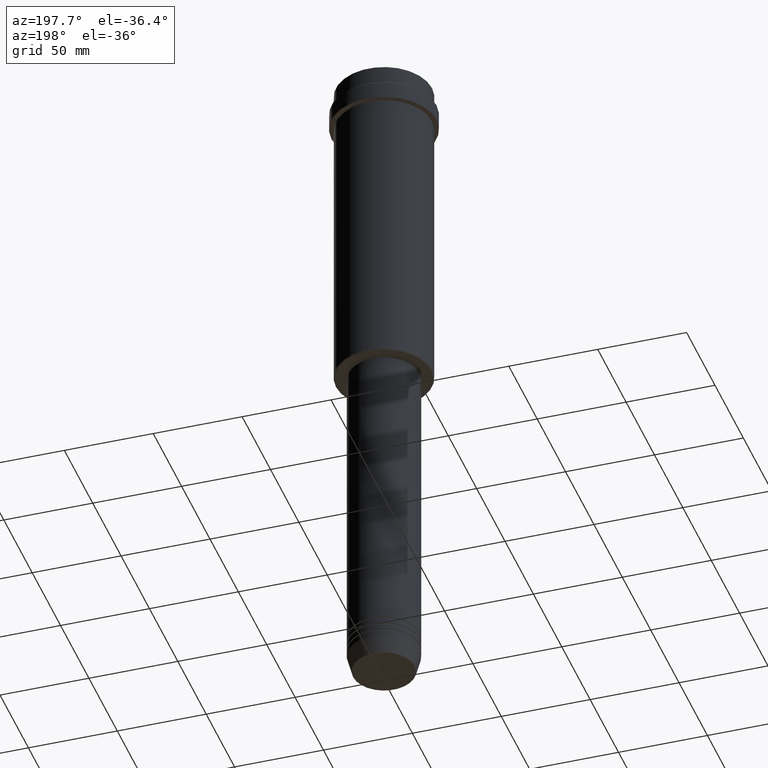
[diagram: clean part render]
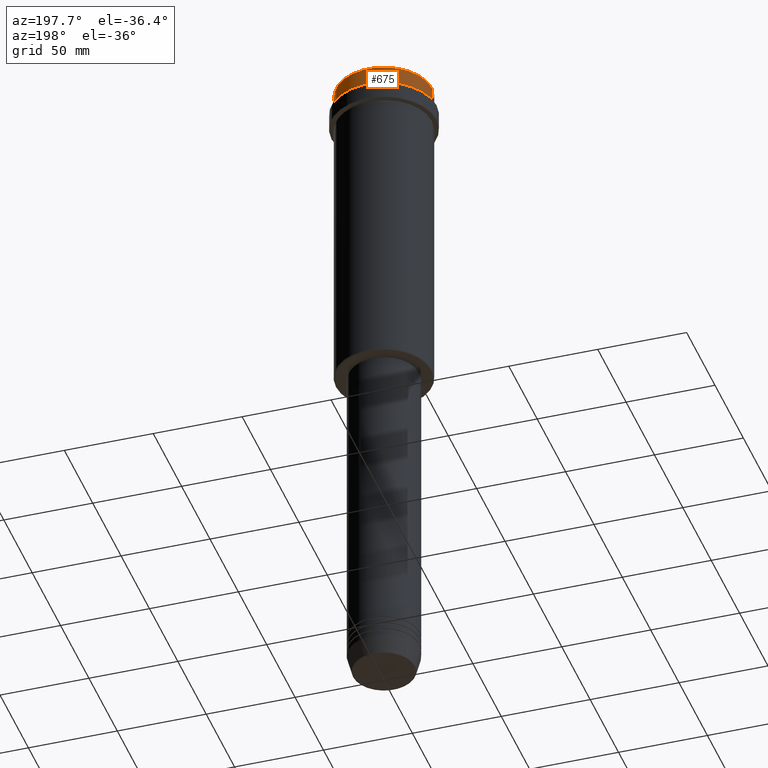
[diagram: same view with one face highlighted and labeled with its STEP entity id]
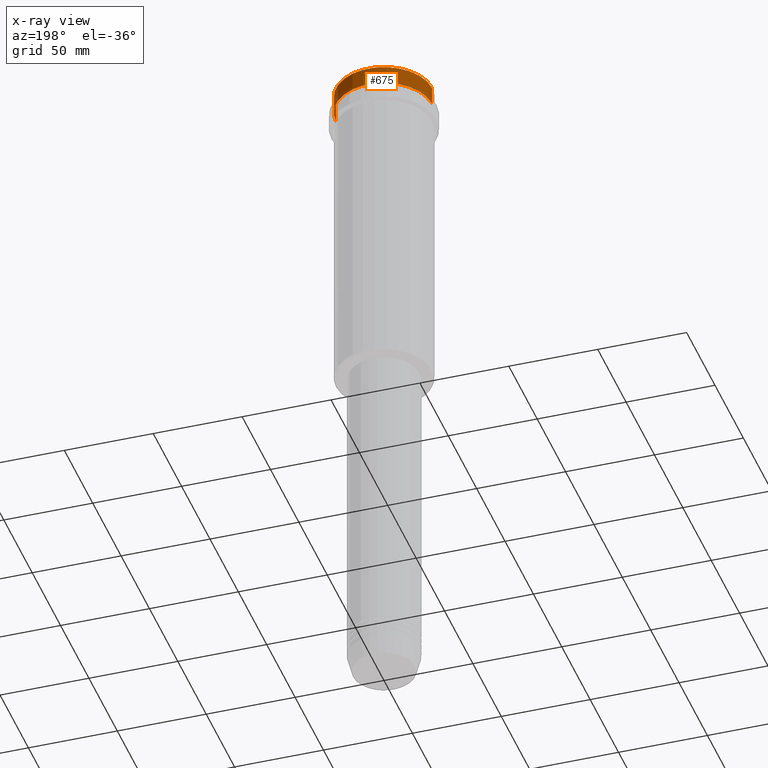
[diagram: x-ray of the same camera — body ghosted, the highlighted face saturated]
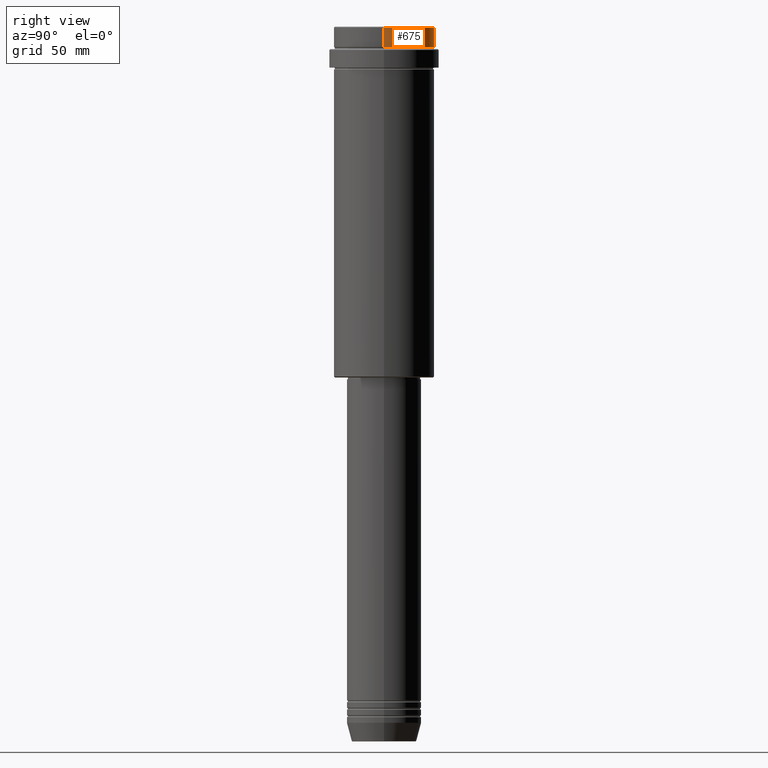
[diagram: same view with one face highlighted and labeled with its STEP entity id]
A machine part, auxiliary view. The second image highlights one B-rep face of the part: STEP entity #675.
The next image is the same camera in x-ray: the body ghosted, the highlighted face saturated — about 0% of this face is hidden behind the body in this view.
A second angle (right view) of the same face is appended — the face is thin or edge-on in the first view.
In plain terms, the highlighted cylindrical surface (partial cylindrical patch) has radius 27 mm, axis along (-0, -0, 1).
Its self-contained STEP definition (entity closure, byte-faithful):
#33 = VERTEX_POINT ( 'NONE', #597 ) ;
#194 = FACE_OUTER_BOUND ( 'NONE', #1131, .T. ) ;
#206 = DIRECTION ( 'NONE',  ( -0.000000000000000000, -0.000000000000000000, 1.000000000000000000 ) ) ;
#223 = CARTESIAN_POINT ( 'NONE',  ( 27.00000000000000355, 0.000000000000000000, 0.000000000000000000 ) ) ;
#295 = CARTESIAN_POINT ( 'NONE',  ( -27.00000000000000355, 3.306546357697854128E-15, -11.00000000000000178 ) ) ;
#358 = VERTEX_POINT ( 'NONE', #1247 ) ;
#465 = ORIENTED_EDGE ( 'NONE', *, *, #697, .F. ) ;
#487 = VERTEX_POINT ( 'NONE', #295 ) ;
#539 = LINE ( 'NONE', #1089, #833 ) ;
#597 = CARTESIAN_POINT ( 'NONE',  ( 27.00000000000000355, 0.000000000000000000, -11.00000000000000178 ) ) ;
#602 = EDGE_CURVE ( 'NONE', #487, #358, #539, .T. ) ;
#665 = LINE ( 'NONE', #223, #1024 ) ;
#671 = ORIENTED_EDGE ( 'NONE', *, *, #1368, .T. ) ;
#675 = ADVANCED_FACE ( 'NONE', ( #194 ), #1073, .T. ) ;
#694 = DIRECTION ( 'NONE',  ( 1.000000000000000000, 0.000000000000000000, 0.000000000000000000 ) ) ;
#697 = EDGE_CURVE ( 'NONE', #33, #957, #665, .T. ) ;
#700 = DIRECTION ( 'NONE',  ( 1.000000000000000000, 0.000000000000000000, 0.000000000000000000 ) ) ;
#816 = CARTESIAN_POINT ( 'NONE',  ( 0.000000000000000000, 0.000000000000000000, -0.5000000000000350830 ) ) ;
#820 = EDGE_CURVE ( 'NONE', #33, #487, #1206, .T. ) ;
#833 = VECTOR ( 'NONE', #1065, 1000.000000000000000 ) ;
#957 = VERTEX_POINT ( 'NONE', #984 ) ;
#980 = CIRCLE ( 'NONE', #1067, 27.00000000000000355 ) ;
#984 = CARTESIAN_POINT ( 'NONE',  ( 27.00000000000000355, 0.000000000000000000, -0.5000000000000350830 ) ) ;
#1003 = ORIENTED_EDGE ( 'NONE', *, *, #820, .T. ) ;
#1024 = VECTOR ( 'NONE', #1135, 1000.000000000000000 ) ;
#1065 = DIRECTION ( 'NONE',  ( -0.000000000000000000, -0.000000000000000000, 1.000000000000000000 ) ) ;
#1067 = AXIS2_PLACEMENT_3D ( 'NONE', #816, #1369, #700 ) ;
#1073 = CYLINDRICAL_SURFACE ( 'NONE', #1276, 27.00000000000000355 ) ;
#1089 = CARTESIAN_POINT ( 'NONE',  ( -27.00000000000000355, 3.306546357697854128E-15, 0.000000000000000000 ) ) ;
#1131 = EDGE_LOOP ( 'NONE', ( #1003, #1214, #671, #465 ) ) ;
#1135 = DIRECTION ( 'NONE',  ( -0.000000000000000000, -0.000000000000000000, 1.000000000000000000 ) ) ;
#1141 = AXIS2_PLACEMENT_3D ( 'NONE', #1279, #1259, #1377 ) ;
#1197 = CARTESIAN_POINT ( 'NONE',  ( 0.000000000000000000, 0.000000000000000000, 0.000000000000000000 ) ) ;
#1206 = CIRCLE ( 'NONE', #1141, 27.00000000000000355 ) ;
#1214 = ORIENTED_EDGE ( 'NONE', *, *, #602, .T. ) ;
#1247 = CARTESIAN_POINT ( 'NONE',  ( -27.00000000000000355, 3.306546357697854128E-15, -0.5000000000000350830 ) ) ;
#1259 = DIRECTION ( 'NONE',  ( -0.000000000000000000, -0.000000000000000000, 1.000000000000000000 ) ) ;
#1276 = AXIS2_PLACEMENT_3D ( 'NONE', #1197, #206, #694 ) ;
#1279 = CARTESIAN_POINT ( 'NONE',  ( 0.000000000000000000, 0.000000000000000000, -11.00000000000000178 ) ) ;
#1368 = EDGE_CURVE ( 'NONE', #358, #957, #980, .T. ) ;
#1369 = DIRECTION ( 'NONE',  ( 0.000000000000000000, 0.000000000000000000, -1.000000000000000000 ) ) ;
#1377 = DIRECTION ( 'NONE',  ( 1.000000000000000000, 0.000000000000000000, 0.000000000000000000 ) ) ;